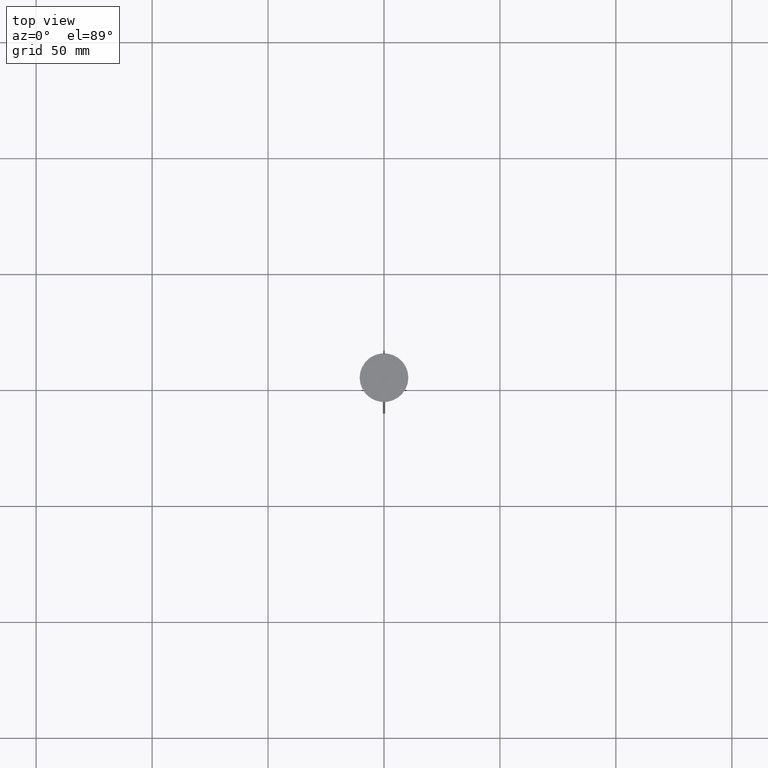
[diagram: clean part render]
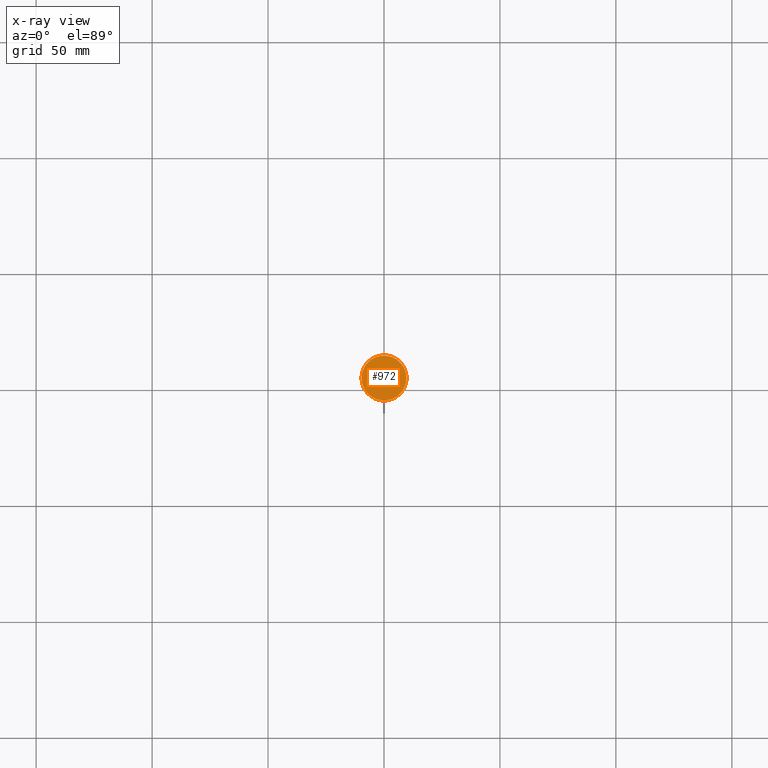
[diagram: x-ray — body ghosted, one internal face saturated and labeled with its STEP entity id]
A machine part, top view, then the same camera in x-ray: the body is ghosted and one INTERNAL B-rep face — a face not visible from any outside direction — is saturated and labeled: STEP entity #972.
In plain terms, the highlighted planar face has unit normal (0, 0, -1).
Its self-contained STEP definition (entity closure, byte-faithful):
#8 = DIRECTION ( 'NONE',  ( 0.000000000000000000, 0.000000000000000000, -1.000000000000000000 ) ) ;
#72 = EDGE_CURVE ( 'NONE', #123, #1511, #1210, .T. ) ;
#88 = DIRECTION ( 'NONE',  ( -0.000000000000000000, -0.000000000000000000, 1.000000000000000000 ) ) ;
#123 = VERTEX_POINT ( 'NONE', #665 ) ;
#303 = CARTESIAN_POINT ( 'NONE',  ( 0.000000000000000000, 0.000000000000000000, -12.00000000000000000 ) ) ;
#469 = DIRECTION ( 'NONE',  ( -1.000000000000000000, 0.000000000000000000, 0.000000000000000000 ) ) ;
#634 = EDGE_CURVE ( 'NONE', #1511, #123, #2382, .T. ) ;
#665 = CARTESIAN_POINT ( 'NONE',  ( -9.700000000000002842, 0.000000000000000000, -12.00000000000000000 ) ) ;
#721 = CARTESIAN_POINT ( 'NONE',  ( 9.700000000000002842, 1.206277097160143024E-15, -12.00000000000000000 ) ) ;
#732 = AXIS2_PLACEMENT_3D ( 'NONE', #303, #88, #469 ) ;
#814 = DIRECTION ( 'NONE',  ( -1.000000000000000000, 0.000000000000000000, -0.000000000000000000 ) ) ;
#972 = ADVANCED_FACE ( 'NONE', ( #1231 ), #1021, .F. ) ;
#1021 = PLANE ( 'NONE',  #2476 ) ;
#1138 = DIRECTION ( 'NONE',  ( -0.000000000000000000, -0.000000000000000000, 1.000000000000000000 ) ) ;
#1181 = EDGE_LOOP ( 'NONE', ( #1763, #1747 ) ) ;
#1210 = CIRCLE ( 'NONE', #1867, 9.700000000000002842 ) ;
#1231 = FACE_OUTER_BOUND ( 'NONE', #1181, .T. ) ;
#1511 = VERTEX_POINT ( 'NONE', #721 ) ;
#1747 = ORIENTED_EDGE ( 'NONE', *, *, #634, .T. ) ;
#1763 = ORIENTED_EDGE ( 'NONE', *, *, #72, .T. ) ;
#1860 = CARTESIAN_POINT ( 'NONE',  ( 0.000000000000000000, 0.000000000000000000, -12.00000000000000000 ) ) ;
#1867 = AXIS2_PLACEMENT_3D ( 'NONE', #2394, #1138, #1977 ) ;
#1977 = DIRECTION ( 'NONE',  ( -1.000000000000000000, 0.000000000000000000, 0.000000000000000000 ) ) ;
#2382 = CIRCLE ( 'NONE', #732, 9.700000000000002842 ) ;
#2394 = CARTESIAN_POINT ( 'NONE',  ( 0.000000000000000000, 0.000000000000000000, -12.00000000000000000 ) ) ;
#2476 = AXIS2_PLACEMENT_3D ( 'NONE', #1860, #8, #814 ) ;